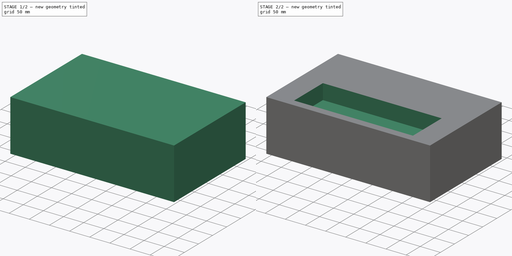
[diagram: build sequence overview — one tinted view per stage of 2, left to right]
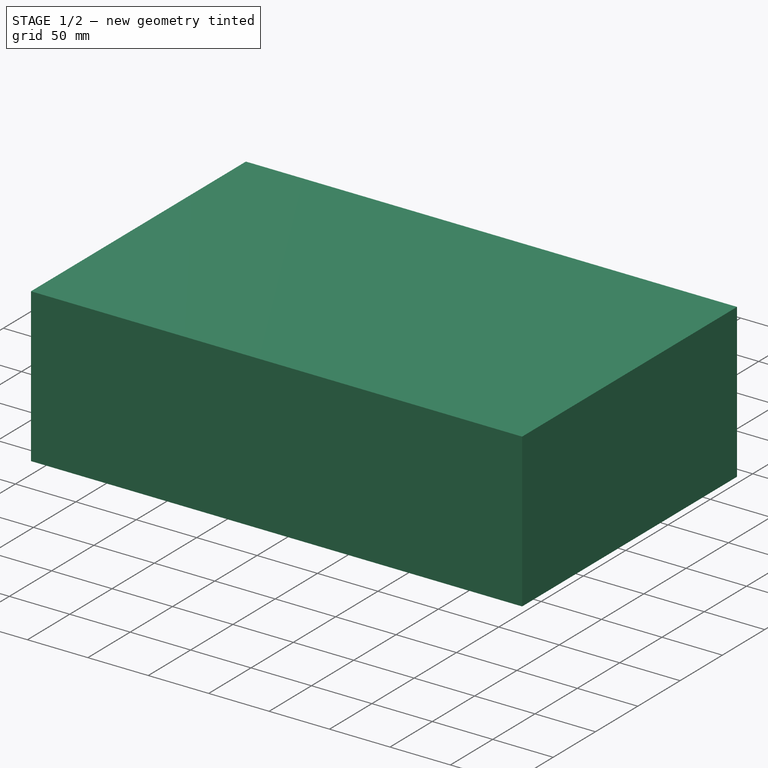
[diagram: stage 1 of 2 — iso view after this stage's code; geometry added in this stage tinted green]
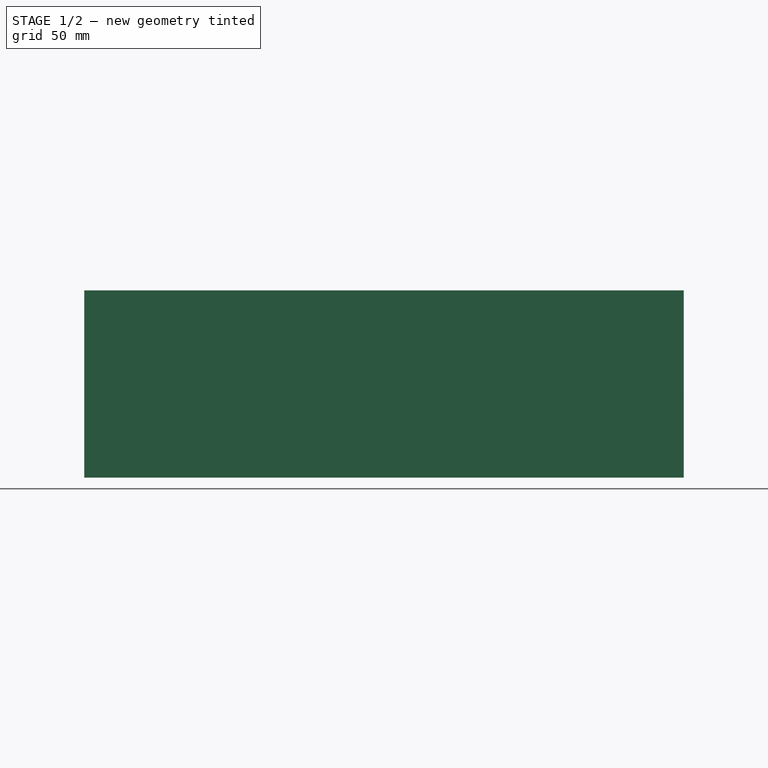
[diagram: stage 1 of 2 — front view after this stage's code; geometry added in this stage tinted green]
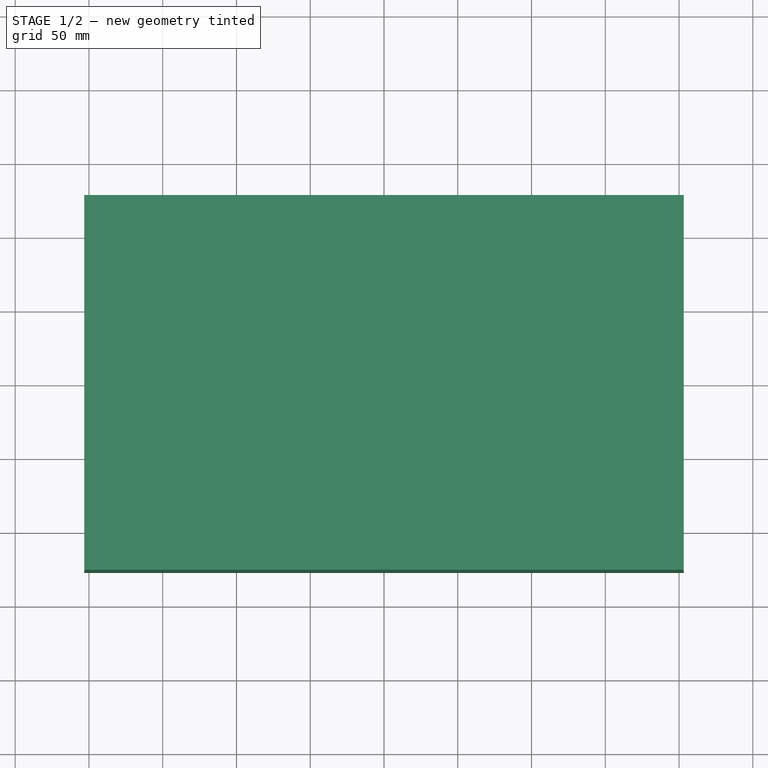
[diagram: stage 1 of 2 — top view after this stage's code; geometry added in this stage tinted green]
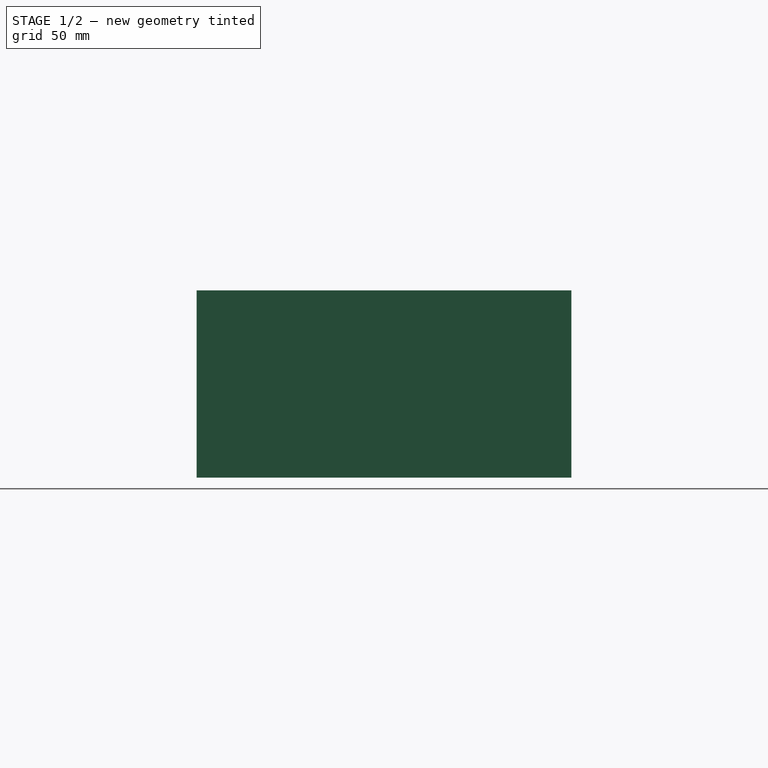
[diagram: stage 1 of 2 — right view after this stage's code; geometry added in this stage tinted green]
FCSTD DOCUMENT  (FreeCAD 0.15R4671 (Git))
Label: cotsmbcFC
License: All rights reserved
LicenseURL: http://en.wikipedia.org/wiki/All_rights_reserved
objects: Sketcher::SketchObject×3, PartDesign::Pad×1, PartDesign::Pocket×1
note: 7 computed .brp shape members not serialized (recipe doc carries the construction recipe); baked Part::Feature solids carry a one-line shape summary decoded from their .brp

FEATURE [Sketcher::SketchObject] Sketch
  sketch-geometry (4):
    g0: LineSegment StartX=-203.2 StartY=127 StartZ=0 EndX=203.2 EndY=127 EndZ=0
    g1: LineSegment StartX=203.2 StartY=127 StartZ=0 EndX=203.2 EndY=-127 EndZ=0
    g2: LineSegment StartX=203.2 StartY=-127 StartZ=0 EndX=-203.2 EndY=-127 EndZ=0
    g3: LineSegment StartX=-203.2 StartY=-127 StartZ=0 EndX=-203.2 EndY=127 EndZ=0
  constraints (13):
    c: Horizontal(g0)
    c: Coincident(g0,g1)
    c: Vertical(g1)
    c: Coincident(g1,g2)
    c: Horizontal(g2)
    c: Coincident(g2,g3)
    c: Coincident(g3,g0)
    c: Vertical(g3)
    c: Equal(g0,g2)
    c: DistanceX(g2) = -406.4
    c: Equal(g1,g3)
    c: DistanceY(g1) = -254
    c: Symmetric(g0,g1,g-1)
FEATURE [PartDesign::Pad] Pad
  Length = 127
  Length2 = 100
  Sketch = -> Sketch
  Type = 0
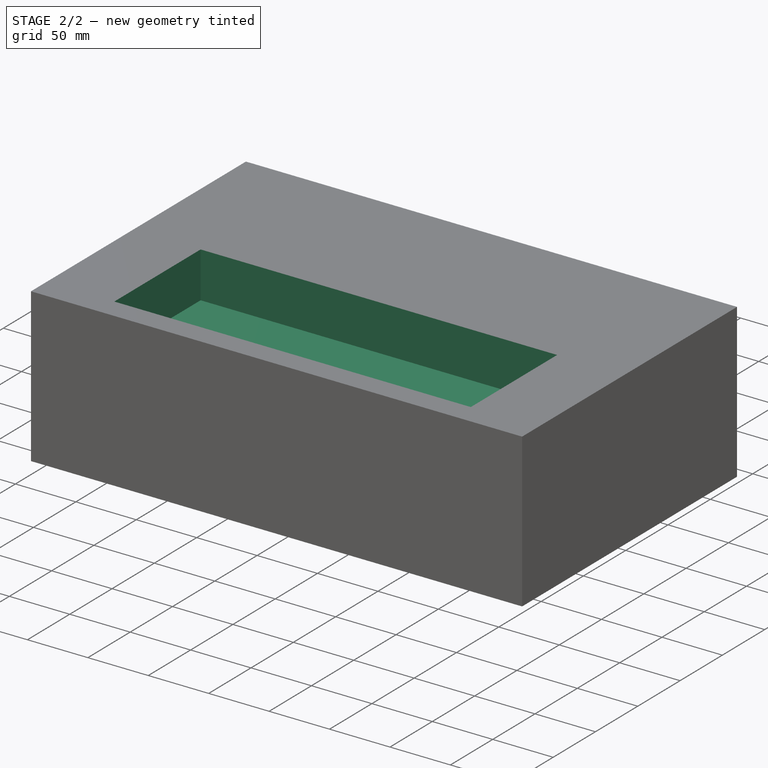
[diagram: stage 2 of 2 — iso view after this stage's code; geometry added in this stage tinted green]
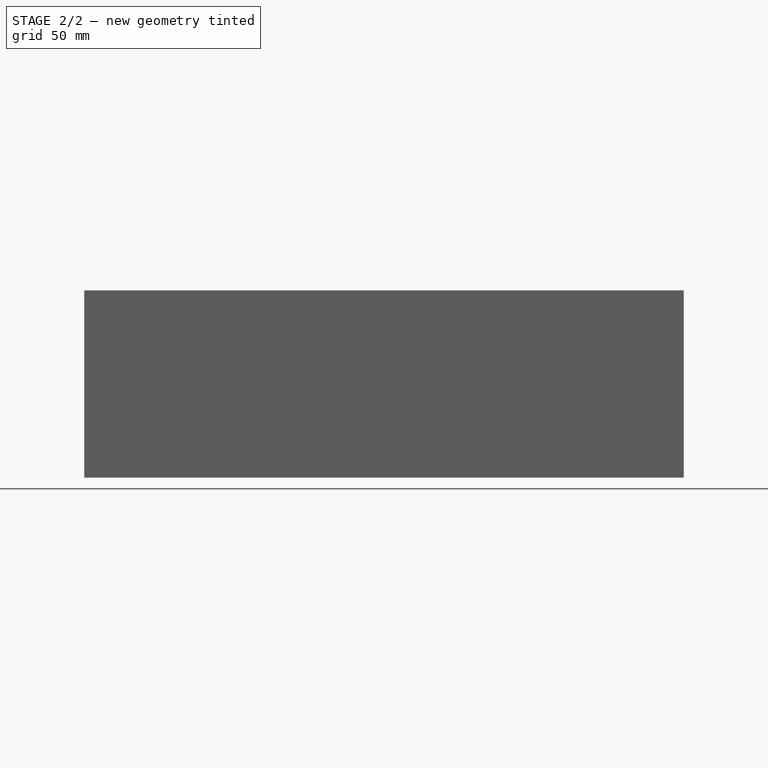
[diagram: stage 2 of 2 — front view after this stage's code; geometry added in this stage tinted green]
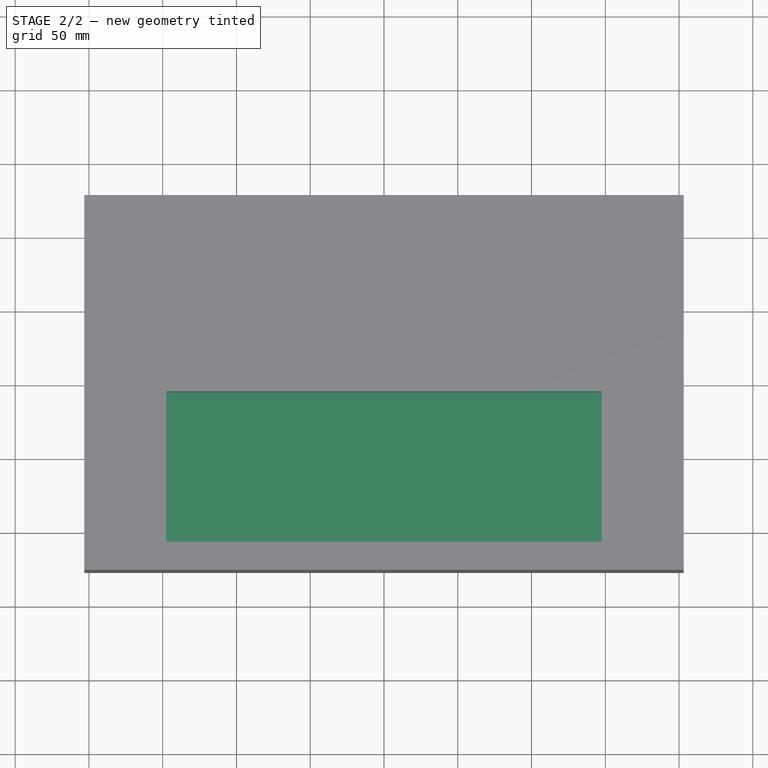
[diagram: stage 2 of 2 — top view after this stage's code; geometry added in this stage tinted green]
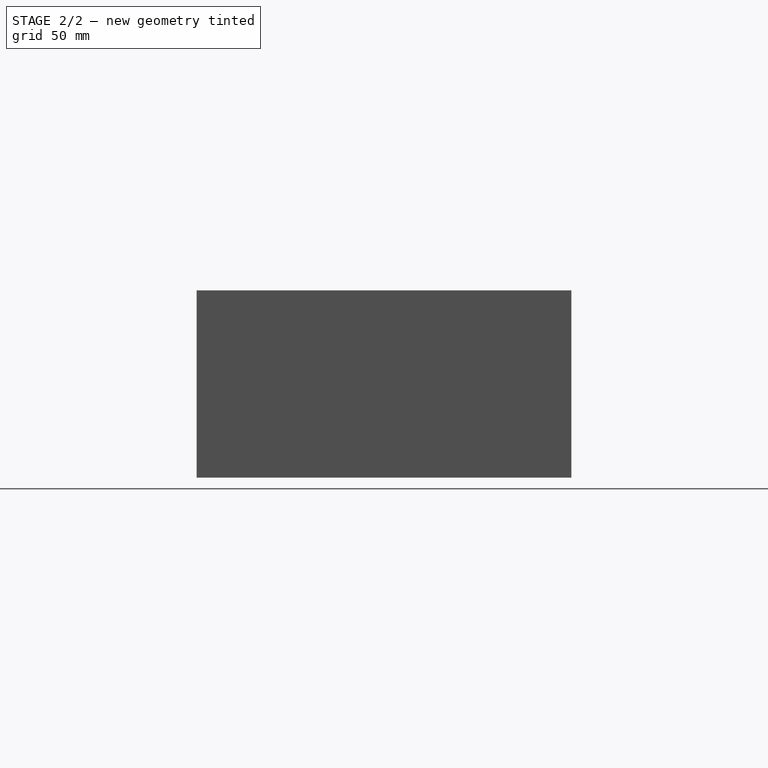
[diagram: stage 2 of 2 — right view after this stage's code; geometry added in this stage tinted green]
FEATURE [Sketcher::SketchObject] Sketch001
  Placement = pos=(0,0,127) rot=(0,0,1;0rad)
  Support = -> Pad [Face6]
  sketch-geometry (4):
    g0: LineSegment StartX=-147.5 StartY=-6.07729 StartZ=0 EndX=147.5 EndY=-6.07729 EndZ=0
    g1: LineSegment StartX=147.5 StartY=-6.07729 StartZ=0 EndX=147.5 EndY=-108.077 EndZ=0
    g2: LineSegment StartX=147.5 StartY=-108.077 StartZ=0 EndX=-147.5 EndY=-108.077 EndZ=0
    g3: LineSegment StartX=-147.5 StartY=-108.077 StartZ=0 EndX=-147.5 EndY=-6.07729 EndZ=0
  constraints (12):
    c: Coincident(g0,g1)
    c: Coincident(g1,g2)
    c: Coincident(g2,g3)
    c: Coincident(g3,g0)
    c: Horizontal(g2)
    c: Vertical(g1)
    c: Vertical(g3)
    c: Equal(g2,g0)
    c: Equal(g1,g3)
    c: DistanceX(g2) = -295
    c: DistanceY(g1) = -102
    c: Symmetric(g0,g0,g-2)
FEATURE [PartDesign::Pocket] Pocket
  Length = 38
  Sketch = -> Sketch001
  Type = 0
FEATURE [Sketcher::SketchObject] Sketch002
  Placement = pos=(0,0,0) rot=(0,0.707107,0.707107;3.14159rad)
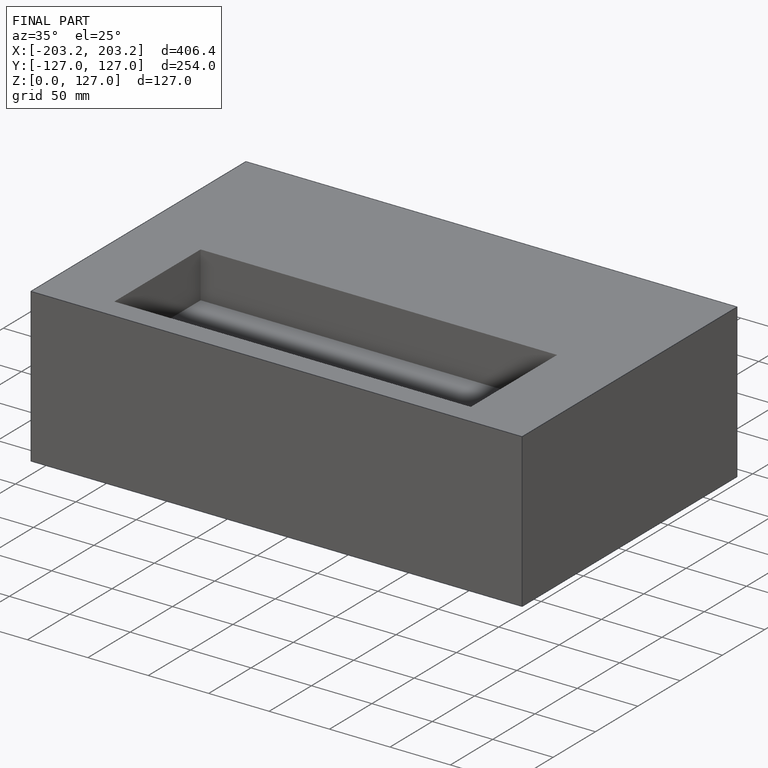
[diagram: finished part — iso view with bounding-box wireframe]
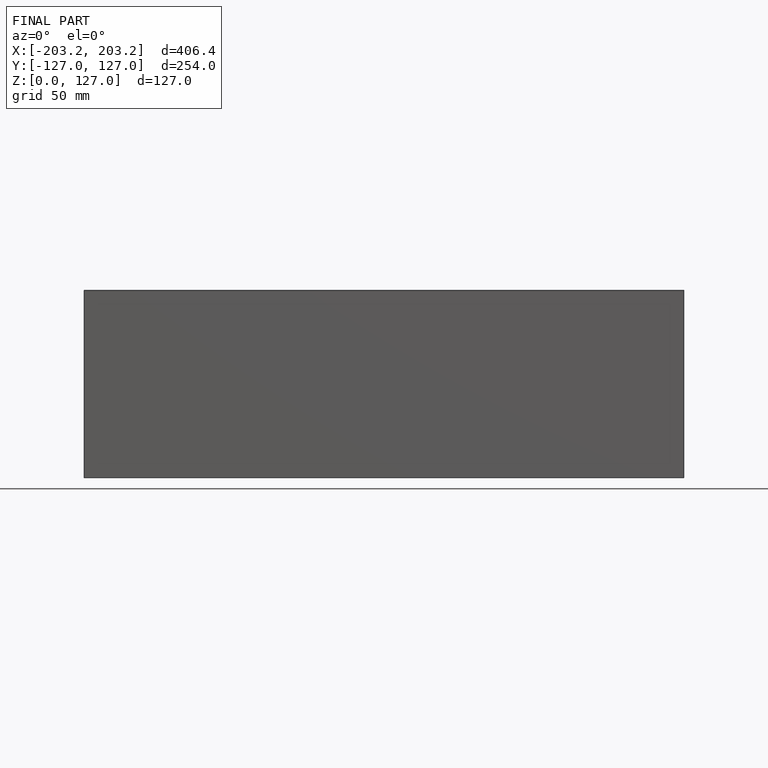
[diagram: finished part — front view with bounding-box wireframe]
